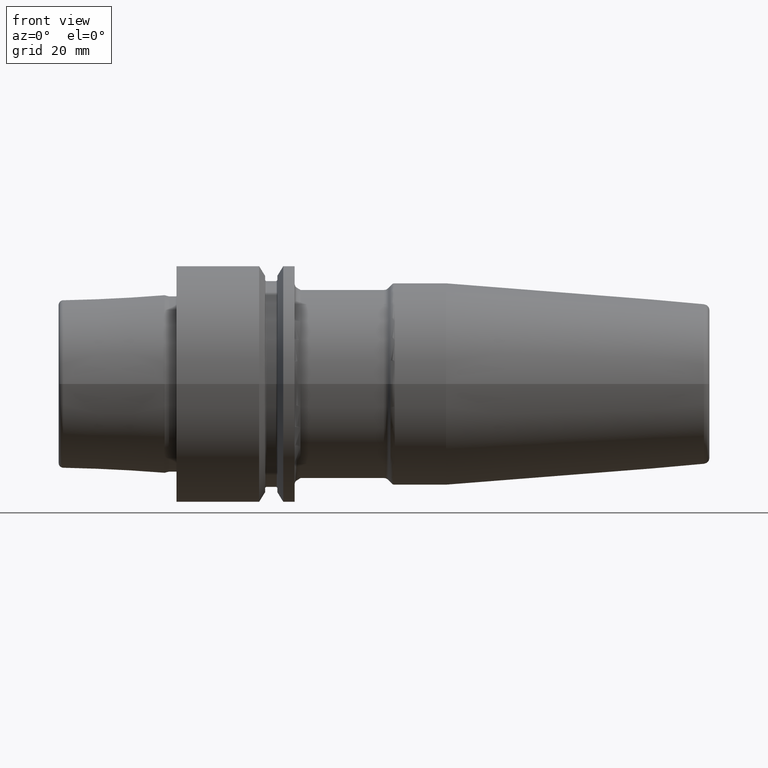
[diagram: clean part render]
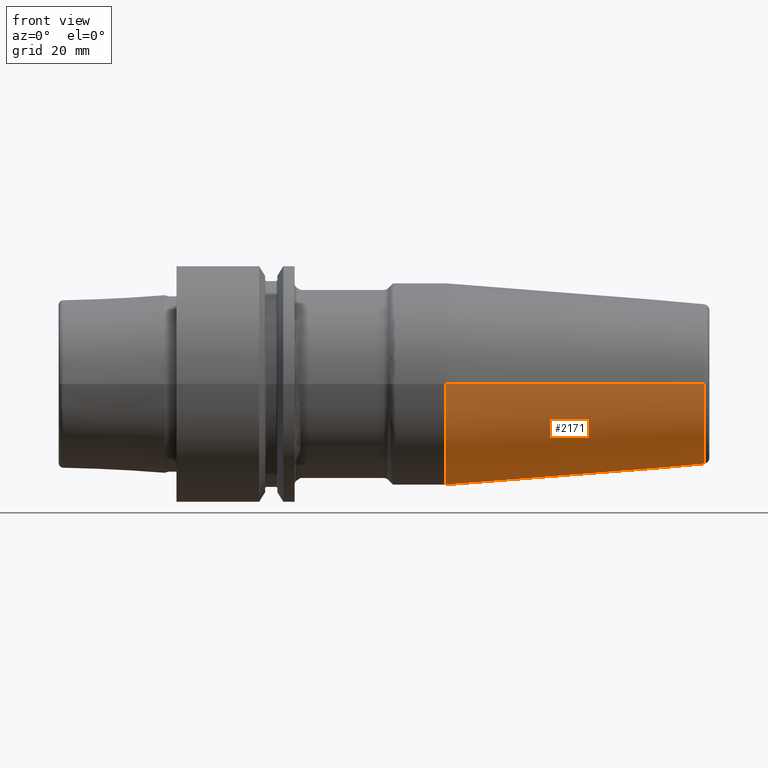
[diagram: same view with one face highlighted and labeled with its STEP entity id]
A machine part, front view. The second image highlights one B-rep face of the part: STEP entity #2171.
In plain terms, the highlighted conical surface has half-angle 4.5 deg.
Its self-contained STEP definition (entity closure, byte-faithful):
#707=CARTESIAN_POINT('',(4.552828342339E1,0.E0,0.E0));
#708=DIRECTION('',(-1.E0,0.E0,0.E0));
#709=DIRECTION('',(0.E0,1.E0,0.E0));
#710=AXIS2_PLACEMENT_3D('',#707,#708,#709);
#761=CARTESIAN_POINT('',(8.907845909573E1,0.E0,0.E0));
#762=DIRECTION('',(-1.E0,0.E0,0.E0));
#763=DIRECTION('',(0.E0,1.E0,0.E0));
#764=AXIS2_PLACEMENT_3D('',#761,#762,#763);
#766=DIRECTION('',(-9.969173337331E-1,7.845909572785E-2,1.201270285673E-14));
#767=VECTOR('',#766,4.368484145948E1);
#768=CARTESIAN_POINT('',(8.907845909573E1,1.357252684207E1,
-5.226911202374E-13));
#769=LINE('',#768,#767);
#770=DIRECTION('',(-9.969173337331E-1,-7.845909572784E-2,-1.214114307487E-14));
#771=VECTOR('',#770,4.368484145948E1);
#772=CARTESIAN_POINT('',(8.907845909573E1,-1.357252684207E1,
5.283020108041E-13));
#773=LINE('',#772,#771);
#964=CARTESIAN_POINT('',(4.552828342339E1,1.7E1,0.E0));
#965=CARTESIAN_POINT('',(4.552828342339E1,-1.7E1,0.E0));
#966=VERTEX_POINT('',#964);
#967=VERTEX_POINT('',#965);
#968=CARTESIAN_POINT('',(8.907845909573E1,1.357252684207E1,0.E0));
#969=CARTESIAN_POINT('',(8.907845909573E1,-1.357252684207E1,0.E0));
#970=VERTEX_POINT('',#968);
#971=VERTEX_POINT('',#969);
#2160=CARTESIAN_POINT('',(6.730337125956E1,0.E0,0.E0));
#2161=DIRECTION('',(-1.E0,0.E0,0.E0));
#2162=DIRECTION('',(0.E0,1.E0,0.E0));
#2163=AXIS2_PLACEMENT_3D('',#2160,#2161,#2162);
#2164=CONICAL_SURFACE('',#2163,1.528626342104E1,4.5E0);
#2165=ORIENTED_EDGE('',*,*,#2151,.F.);
#2166=ORIENTED_EDGE('',*,*,#2126,.T.);
#2167=ORIENTED_EDGE('',*,*,#2057,.T.);
#2168=ORIENTED_EDGE('',*,*,#2123,.F.);
#2169=EDGE_LOOP('',(#2165,#2166,#2167,#2168));
#2170=FACE_OUTER_BOUND('',#2169,.F.);
#2171=ADVANCED_FACE('',(#2170),#2164,.T.);
#711=CIRCLE('',#710,1.7E1);
#765=CIRCLE('',#764,1.357252684207E1);
#2057=EDGE_CURVE('',#966,#967,#711,.T.);
#2123=EDGE_CURVE('',#971,#967,#773,.T.);
#2126=EDGE_CURVE('',#970,#966,#769,.T.);
#2151=EDGE_CURVE('',#970,#971,#765,.T.);